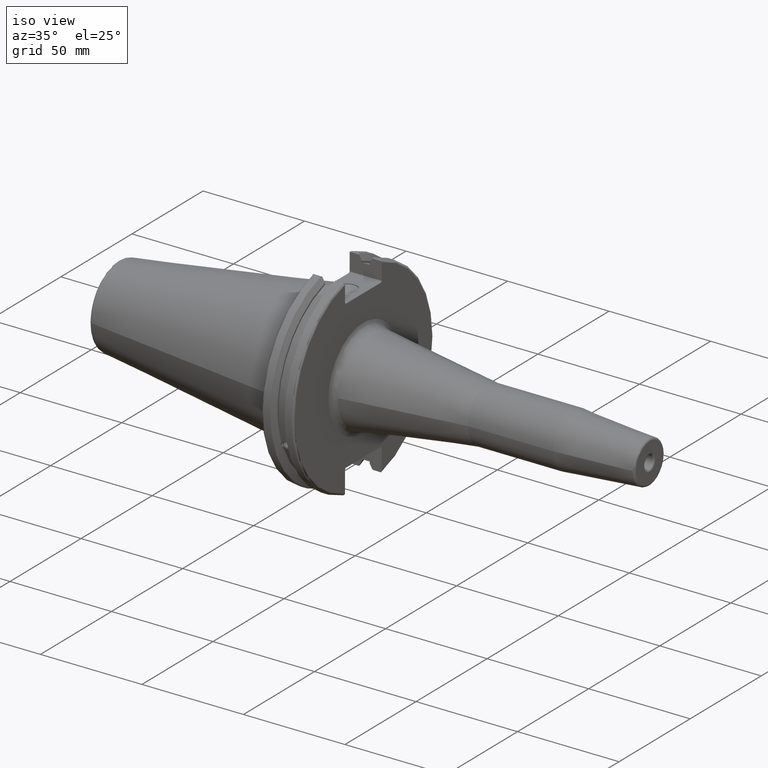
[diagram: clean part render]
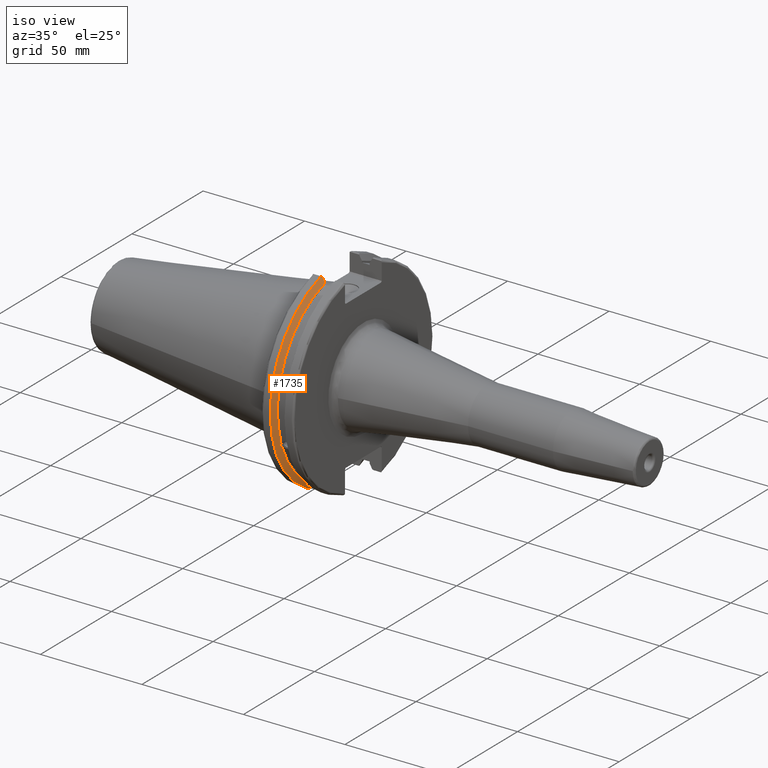
[diagram: same view with one face highlighted and labeled with its STEP entity id]
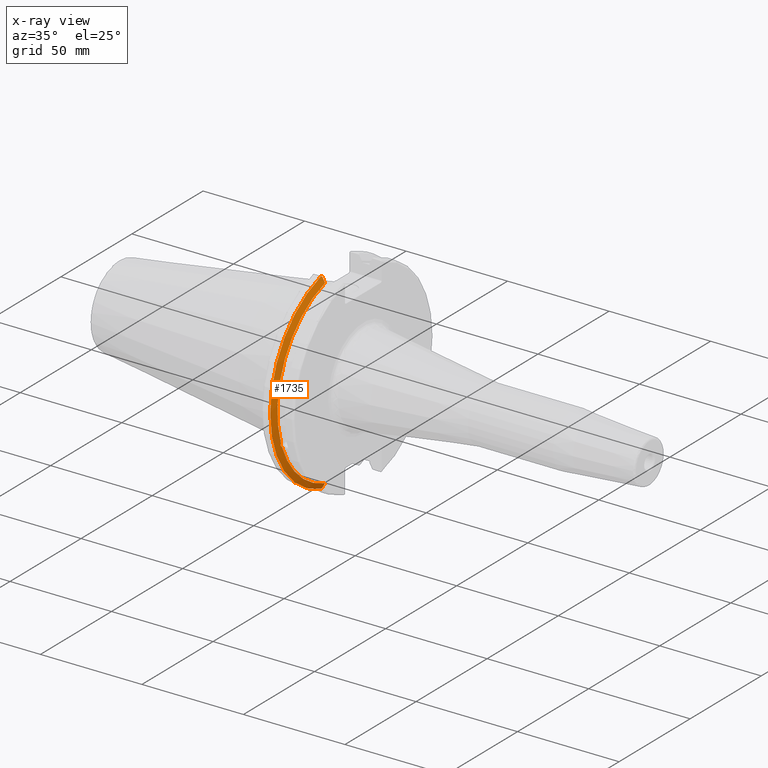
[diagram: x-ray of the same camera — body ghosted, the highlighted face saturated]
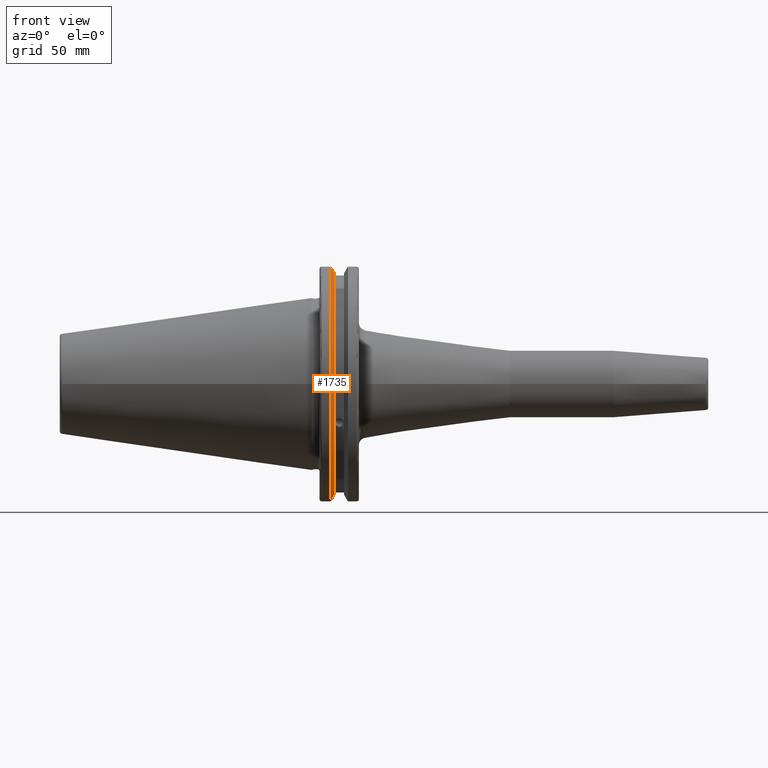
[diagram: same view with one face highlighted and labeled with its STEP entity id]
A machine part, iso view. The second image highlights one B-rep face of the part: STEP entity #1735.
The next image is the same camera in x-ray: the body ghosted, the highlighted face saturated — about 0% of this face is hidden behind the body in this view.
A second angle (front view) of the same face is appended — the face is thin or edge-on in the first view.
In plain terms, the highlighted conical surface has half-angle 60 deg.
Its self-contained STEP definition (entity closure, byte-faithful):
#25=(
BOUNDED_CURVE()
B_SPLINE_CURVE(2,(#3279,#3280,#3281),.UNSPECIFIED.,.F.,.F.)
B_SPLINE_CURVE_WITH_KNOTS((3,3),(0.,0.275823910674601),.UNSPECIFIED.)
CURVE()
GEOMETRIC_REPRESENTATION_ITEM()
RATIONAL_B_SPLINE_CURVE((1.,1.00038235573593,1.00012873636487))
REPRESENTATION_ITEM('')
);
#26=(
BOUNDED_CURVE()
B_SPLINE_CURVE(2,(#3291,#3292,#3293),.UNSPECIFIED.,.F.,.F.)
B_SPLINE_CURVE_WITH_KNOTS((3,3),(0.0558332664507492,0.331657177124507),
 .UNSPECIFIED.)
CURVE()
GEOMETRIC_REPRESENTATION_ITEM()
RATIONAL_B_SPLINE_CURVE((1.00012873636807,1.00038235574544,1.))
REPRESENTATION_ITEM('')
);
#27=(
BOUNDED_CURVE()
B_SPLINE_CURVE(2,(#3326,#3327,#3328),.UNSPECIFIED.,.F.,.F.)
B_SPLINE_CURVE_WITH_KNOTS((3,3),(0.,0.0648240472897372),.UNSPECIFIED.)
CURVE()
GEOMETRIC_REPRESENTATION_ITEM()
RATIONAL_B_SPLINE_CURVE((1.,1.00011477674836,1.00019140645948))
REPRESENTATION_ITEM('')
);
#28=(
BOUNDED_CURVE()
B_SPLINE_CURVE(2,(#3334,#3335,#3336),.UNSPECIFIED.,.F.,.F.)
B_SPLINE_CURVE_WITH_KNOTS((3,3),(0.325260944932348,0.390084992222201),
 .UNSPECIFIED.)
CURVE()
GEOMETRIC_REPRESENTATION_ITEM()
RATIONAL_B_SPLINE_CURVE((1.00019140645916,1.00011477674817,1.))
REPRESENTATION_ITEM('')
);
#41=B_SPLINE_CURVE_WITH_KNOTS('',3,(#2744,#2745,#2746,#2747,#2748,#2749,
#2750,#2751,#2752,#2753,#2754,#2755,#2756,#2757),.UNSPECIFIED.,.F.,.F.,
(4,2,2,2,2,2,4),(0.426712868358719,0.441644498666906,0.48031331322313,0.518982127779354,
0.557650942335578,0.596319756891801,0.611251387199988),.UNSPECIFIED.);
#303=CONICAL_SURFACE('',#1954,47.8172386482472,1.0471975511966);
#446=FACE_OUTER_BOUND('',#555,.T.);
#555=EDGE_LOOP('',(#1621,#1622,#1623,#1624,#1625,#1626,#1627,#1628));
#607=CIRCLE('',#1835,46.4219772964944);
#643=CIRCLE('',#1900,49.2125);
#667=CIRCLE('',#1955,46.4219772964944);
#724=VERTEX_POINT('',#2741);
#725=VERTEX_POINT('',#2743);
#745=VERTEX_POINT('',#2839);
#819=VERTEX_POINT('',#3276);
#820=VERTEX_POINT('',#3278);
#823=VERTEX_POINT('',#3290);
#827=VERTEX_POINT('',#3324);
#828=VERTEX_POINT('',#3330);
#923=EDGE_CURVE('',#725,#724,#41,.T.);
#949=EDGE_CURVE('',#725,#745,#607,.T.);
#1047=EDGE_CURVE('',#820,#819,#25,.T.);
#1053=EDGE_CURVE('',#823,#745,#26,.T.);
#1061=EDGE_CURVE('',#827,#819,#27,.T.);
#1063=EDGE_CURVE('',#827,#828,#643,.T.);
#1064=EDGE_CURVE('',#823,#828,#28,.T.);
#1114=EDGE_CURVE('',#820,#724,#667,.T.);
#1621=ORIENTED_EDGE('',*,*,#923,.T.);
#1622=ORIENTED_EDGE('',*,*,#1114,.F.);
#1623=ORIENTED_EDGE('',*,*,#1047,.T.);
#1624=ORIENTED_EDGE('',*,*,#1061,.F.);
#1625=ORIENTED_EDGE('',*,*,#1063,.T.);
#1626=ORIENTED_EDGE('',*,*,#1064,.F.);
#1627=ORIENTED_EDGE('',*,*,#1053,.T.);
#1628=ORIENTED_EDGE('',*,*,#949,.F.);
#1735=ADVANCED_FACE('',(#446),#303,.T.);
#1835=AXIS2_PLACEMENT_3D('',#2840,#2145,#2146);
#1900=AXIS2_PLACEMENT_3D('',#3332,#2319,#2320);
#1954=AXIS2_PLACEMENT_3D('',#3464,#2448,#2449);
#1955=AXIS2_PLACEMENT_3D('',#3465,#2450,#2451);
#2145=DIRECTION('center_axis',(1.,0.,0.));
#2146=DIRECTION('ref_axis',(0.,0.,-1.));
#2319=DIRECTION('center_axis',(1.,0.,0.));
#2320=DIRECTION('ref_axis',(0.,0.,-1.));
#2448=DIRECTION('center_axis',(-1.,0.,0.));
#2449=DIRECTION('ref_axis',(0.,-1.,-1.22464679914735E-16));
#2450=DIRECTION('center_axis',(1.,0.,0.));
#2451=DIRECTION('ref_axis',(0.,0.,-1.));
#2741=CARTESIAN_POINT('',(9.2191,-43.9096390749305,-15.0646464421033));
#2743=CARTESIAN_POINT('',(9.2191,-43.3201030900029,-16.684383248648));
#2744=CARTESIAN_POINT('Ctrl Pts',(9.21910000000001,-43.3201030900029,-16.6843832486479));
#2745=CARTESIAN_POINT('Ctrl Pts',(9.20211843903392,-43.3613106941341,-16.6592273018006));
#2746=CARTESIAN_POINT('Ctrl Pts',(9.18608675403322,-43.4012416983557,-16.6326763251437));
#2747=CARTESIAN_POINT('Ctrl Pts',(9.13238673845037,-43.5391037343221,-16.5325130832406));
#2748=CARTESIAN_POINT('Ctrl Pts',(9.09621610663556,-43.6406982153491,-16.441180795372));
#2749=CARTESIAN_POINT('Ctrl Pts',(9.04690868251975,-43.8110833825827,-16.2291323464527));
#2750=CARTESIAN_POINT('Ctrl Pts',(9.0341,-43.8794096049168,-16.10796730316));
#2751=CARTESIAN_POINT('Ctrl Pts',(9.0341,-43.9675796948952,-15.8657219718732));
#2752=CARTESIAN_POINT('Ctrl Pts',(9.04690868251975,-43.9931221605126,-15.7289849146254));
#2753=CARTESIAN_POINT('Ctrl Pts',(9.09621610663556,-43.9989016655819,-15.4570249042867));
#2754=CARTESIAN_POINT('Ctrl Pts',(9.13238673845037,-43.9797830409458,-15.3217566390708));
#2755=CARTESIAN_POINT('Ctrl Pts',(9.18608675403322,-43.9385582852181,-15.1564111356409));
#2756=CARTESIAN_POINT('Ctrl Pts',(9.20211843903392,-43.9250360001461,-15.1104047527575));
#2757=CARTESIAN_POINT('Ctrl Pts',(9.2191,-43.9096390749305,-15.0646464421033));
#2839=CARTESIAN_POINT('',(9.2191,-12.95,-44.5791147973604));
#2840=CARTESIAN_POINT('Origin',(9.2191,0.,0.));
#3276=CARTESIAN_POINT('',(7.88638960562424,-12.95,46.9780755322918));
#3278=CARTESIAN_POINT('',(9.2191,-12.95,44.5791147973604));
#3279=CARTESIAN_POINT('Ctrl Pts',(9.2191,-12.95,44.5791147973604));
#3280=CARTESIAN_POINT('Ctrl Pts',(8.57020449055857,-12.95,45.7494966802148));
#3281=CARTESIAN_POINT('Ctrl Pts',(7.88638960562424,-12.95,46.9780755322918));
#3290=CARTESIAN_POINT('',(7.88638960562425,-12.95,-46.9780755322918));
#3291=CARTESIAN_POINT('Ctrl Pts',(7.88638960562425,-12.95,-46.9780755322918));
#3292=CARTESIAN_POINT('Ctrl Pts',(8.57020449054166,-12.95,-45.7494966802452));
#3293=CARTESIAN_POINT('Ctrl Pts',(9.2191,-12.95,-44.5791147973604));
#3324=CARTESIAN_POINT('',(7.60799096595127,-13.4317035994433,47.3440544806494));
#3326=CARTESIAN_POINT('Ctrl Pts',(7.60799096595126,-13.4317035994433,47.3440544806494));
#3327=CARTESIAN_POINT('Ctrl Pts',(7.7482689666382,-13.1896660169966,47.1601640966265));
#3328=CARTESIAN_POINT('Ctrl Pts',(7.88638960562424,-12.95,46.9780755322918));
#3330=CARTESIAN_POINT('',(7.60799096595127,-13.4317035994433,-47.3440544806494));
#3332=CARTESIAN_POINT('Origin',(7.60799096595127,0.,0.));
#3334=CARTESIAN_POINT('Ctrl Pts',(7.88638960562425,-12.95,-46.9780755322918));
#3335=CARTESIAN_POINT('Ctrl Pts',(7.74826896663813,-13.1896660169967,-47.1601640966265));
#3336=CARTESIAN_POINT('Ctrl Pts',(7.60799096595127,-13.4317035994434,-47.3440544806494));
#3464=CARTESIAN_POINT('Origin',(8.41354548297563,0.,0.));
#3465=CARTESIAN_POINT('Origin',(9.2191,0.,0.));